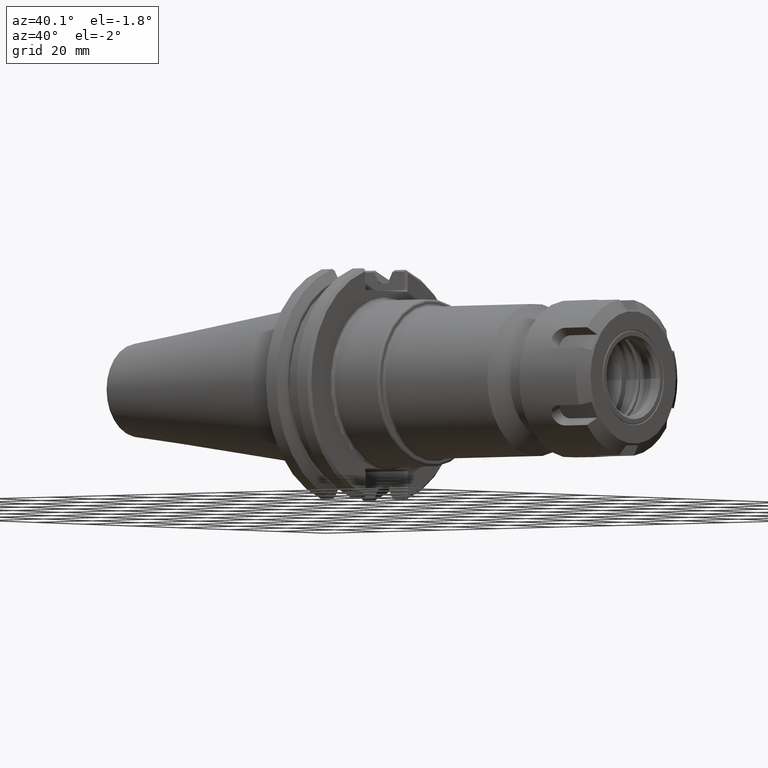
[diagram: clean part render]
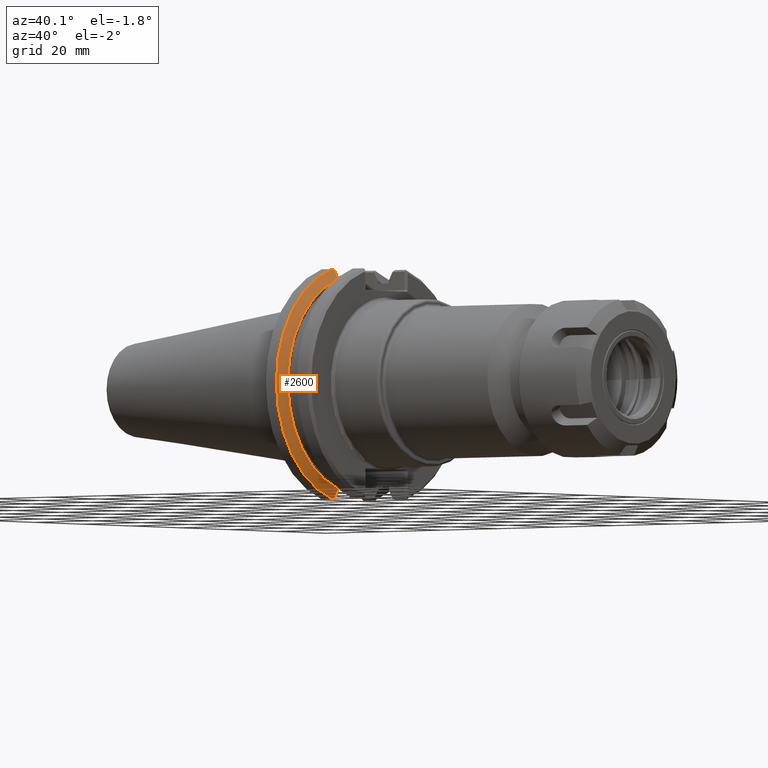
[diagram: same view with one face highlighted and labeled with its STEP entity id]
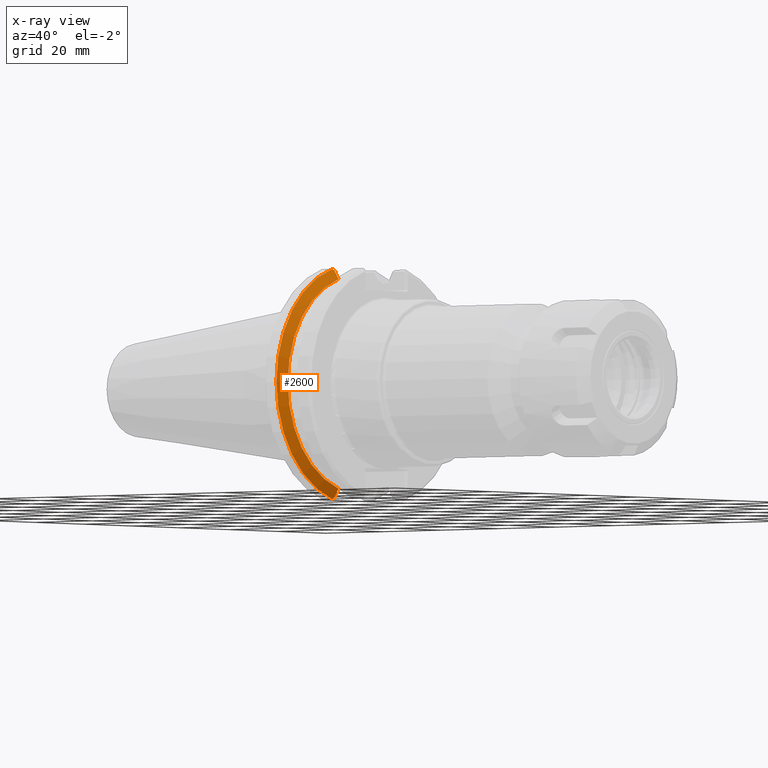
[diagram: x-ray of the same camera — body ghosted, the highlighted face saturated]
A machine part, auxiliary view. The second image highlights one B-rep face of the part: STEP entity #2600.
The next image is the same camera in x-ray: the body ghosted, the highlighted face saturated — about 0% of this face is hidden behind the body in this view.
In plain terms, the highlighted conical surface has half-angle 60 deg.
Its self-contained STEP definition (entity closure, byte-faithful):
#1209=CARTESIAN_POINT('',(0.313469259546256,-0.319999999999719,1.183345976945419));
#1210=VERTEX_POINT('',#1209);
#1217=CARTESIAN_POINT('',(0.362850000000028,-0.319999999999719,1.094499578944636));
#1218=VERTEX_POINT('',#1217);
#1219=CARTESIAN_POINT('',(0.362850000000161,-0.319999999999719,1.094499578944396));
#1220=CARTESIAN_POINT('',(0.339122667172388,-0.319999999999719,1.13731701223264));
#1221=CARTESIAN_POINT('',(0.313469259546256,-0.319999999999719,1.183345976945419));
#1229=(BOUNDED_CURVE()B_SPLINE_CURVE(2,(#1219,#1220,#1221),.UNSPECIFIED.,.F.,.U.)B_SPLINE_CURVE_WITH_KNOTS((3,3),(0.0,0.260803090047753),.UNSPECIFIED.)CURVE()GEOMETRIC_REPRESENTATION_ITEM()RATIONAL_B_SPLINE_CURVE((1.0,1.000895493566802,1.000379364128693))REPRESENTATION_ITEM(''));
#1230=EDGE_CURVE('',#1218,#1210,#1229,.T.);
#1477=CARTESIAN_POINT('',(0.362850000000028,-0.319999999999723,-1.094499578944635));
#1478=VERTEX_POINT('',#1477);
#1485=CARTESIAN_POINT('',(0.313469259546248,-0.319999999999731,-1.183345976945432));
#1486=VERTEX_POINT('',#1485);
#1487=CARTESIAN_POINT('',(0.313469259546248,-0.319999999999731,-1.183345976945432));
#1488=CARTESIAN_POINT('',(0.33912266717235,-0.319999999999727,-1.137317012232706));
#1489=CARTESIAN_POINT('',(0.362850000000161,-0.319999999999723,-1.094499578944395));
#1497=(BOUNDED_CURVE()B_SPLINE_CURVE(2,(#1487,#1488,#1489),.UNSPECIFIED.,.F.,.U.)B_SPLINE_CURVE_WITH_KNOTS((3,3),(0.070089065332962,0.330892155380514),.UNSPECIFIED.)CURVE()GEOMETRIC_REPRESENTATION_ITEM()RATIONAL_B_SPLINE_CURVE((1.000379364127773,1.000895493564628,1.0))REPRESENTATION_ITEM(''));
#1498=EDGE_CURVE('',#1486,#1478,#1497,.T.);
#2109=CARTESIAN_POINT('',(0.299526127773361,-0.344098106797811,-1.201705659842776));
#2110=VERTEX_POINT('',#2109);
#2111=CARTESIAN_POINT('',(0.313469259546248,-0.319999999999731,-1.183345976945432));
#2112=CARTESIAN_POINT('',(0.306604705437652,-0.33193152316645,-1.1924362753518));
#2113=CARTESIAN_POINT('',(0.299526127772863,-0.344098106798706,-1.201705659843441));
#2121=(BOUNDED_CURVE()B_SPLINE_CURVE(2,(#2111,#2112,#2113),.UNSPECIFIED.,.F.,.U.)B_SPLINE_CURVE_WITH_KNOTS((3,3),(0.310567973942578,0.391925496551322),.UNSPECIFIED.)CURVE()GEOMETRIC_REPRESENTATION_ITEM()RATIONAL_B_SPLINE_CURVE((1.000571469392901,1.00036058680284,1.0))REPRESENTATION_ITEM(''));
#2122=EDGE_CURVE('',#1486,#2110,#2121,.T.);
#2165=CARTESIAN_POINT('',(0.299526127773361,-0.344098106797854,1.201705659842764));
#2166=VERTEX_POINT('',#2165);
#2173=CARTESIAN_POINT('',(0.299526127773011,-0.344098106798479,1.20170565984324));
#2174=CARTESIAN_POINT('',(0.306604705437727,-0.331931523166333,1.192436275351695));
#2175=CARTESIAN_POINT('',(0.313469259546256,-0.319999999999719,1.183345976945419));
#2183=(BOUNDED_CURVE()B_SPLINE_CURVE(2,(#2173,#2174,#2175),.UNSPECIFIED.,.F.,.U.)B_SPLINE_CURVE_WITH_KNOTS((3,3),(0.0,0.081357522607958),.UNSPECIFIED.)CURVE()GEOMETRIC_REPRESENTATION_ITEM()RATIONAL_B_SPLINE_CURVE((1.0,1.000360586802802,1.000571469392843))REPRESENTATION_ITEM(''));
#2184=EDGE_CURVE('',#2166,#1210,#2183,.T.);
#2575=CARTESIAN_POINT('',(0.278793526957718,2.635844E-013,0.0));
#2576=DIRECTION('',(-1.0,-1.624514E-013,0.0));
#2577=DIRECTION('',(-1.624821E-013,1.0,0.0));
#2578=AXIS2_PLACEMENT_3D('',#2575,#2576,#2577);
#2579=CONICAL_SURFACE('',#2578,1.285909917985751,60.000000000009265);
#2580=ORIENTED_EDGE('',*,*,#2122,.F.);
#2581=ORIENTED_EDGE('',*,*,#1498,.T.);
#2582=CARTESIAN_POINT('',(0.362849999999976,2.772395E-013,0.0));
#2583=DIRECTION('',(-1.0,-1.624821E-013,0.0));
#2584=DIRECTION('',(-1.624821E-013,1.0,0.0));
#2585=AXIS2_PLACEMENT_3D('',#2582,#2583,#2584);
#2586=CIRCLE('',#2585,1.140319835971463);
#2587=EDGE_CURVE('',#1478,#1218,#2586,.T.);
#2588=ORIENTED_EDGE('',*,*,#2587,.T.);
#2589=ORIENTED_EDGE('',*,*,#1230,.T.);
#2590=ORIENTED_EDGE('',*,*,#2184,.F.);
#2591=CARTESIAN_POINT('',(0.299526127773361,0.0,0.0));
#2592=DIRECTION('',(-1.0,-1.624514E-013,0.0));
#2593=DIRECTION('',(-1.624514E-013,1.0,0.0));
#2594=AXIS2_PLACEMENT_3D('',#2591,#2592,#2593);
#2595=CIRCLE('',#2594,1.25);
#2596=EDGE_CURVE('',#2110,#2166,#2595,.T.);
#2597=ORIENTED_EDGE('',*,*,#2596,.F.);
#2598=EDGE_LOOP('',(#2580,#2581,#2588,#2589,#2590,#2597));
#2599=FACE_OUTER_BOUND('',#2598,.T.);
#2600=ADVANCED_FACE('',(#2599),#2579,.T.);